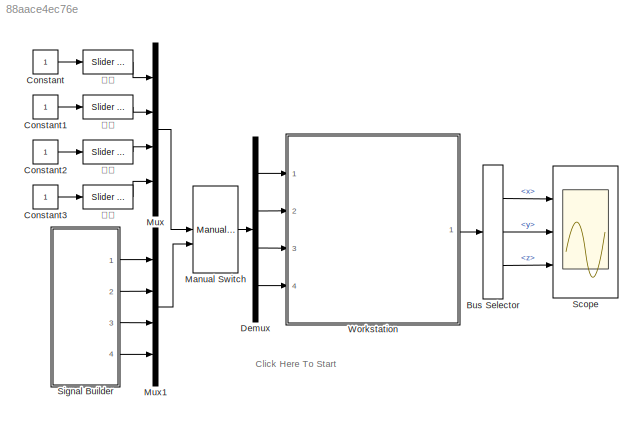
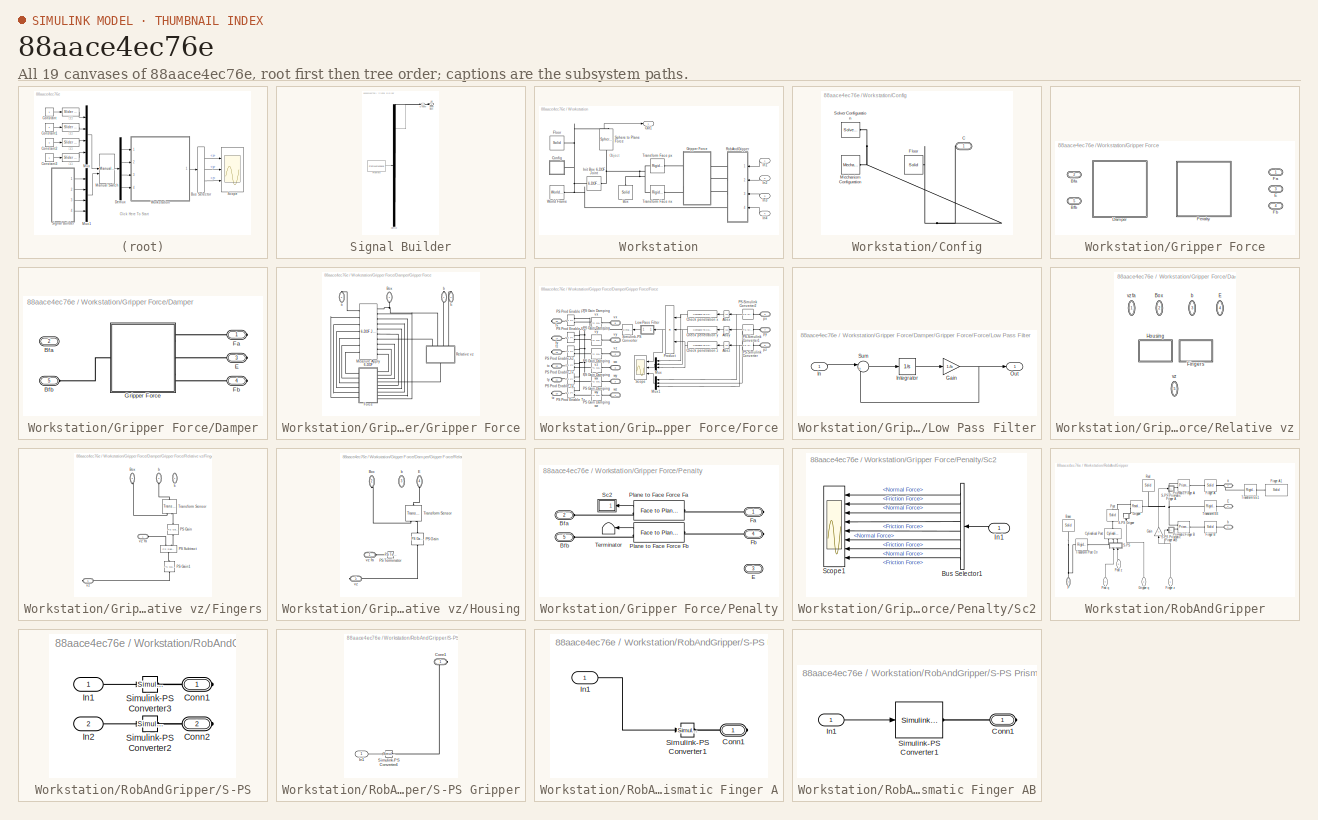
[diagram: thumbnail index - all 19 canvases of the model, root first then tree order]
MODEL slx_88aace4ec76e
KIND model
CONFIG AbsTol = auto
CONFIG EnableMultiTasking = off
CONFIG FixedStep = auto
CONFIG MaxStep = 0.001
CONFIG MinStep = auto
CONFIG RelTol = 1e-3
CONFIG SampleTimeConstraint = Unconstrained
CONFIG Solver = ode15s
CONFIG SolverName = ode15s
CONFIG StartTime = 0.0
CONFIG StopTime = 11
BLOCK [BusSelector] Bus Selector
  OutputAsBus = off
  OutputSignals = Frame Sep.x,Frame Sep.y,Frame Sep.z
  Ports = [1, 3]
BLOCK [Constant] Constant
BLOCK [Constant] Constant1
BLOCK [Constant] Constant2
BLOCK [Constant] Constant3
BLOCK [Demux] Demux
  DisplayOption = bar
  Ports = [1, 4]
BLOCK [ManualSwitch] Manual Switch
BLOCK [Mux] Mux
  DisplayOption = bar
  Ports = [4, 1]
BLOCK [Mux] Mux1
  DisplayOption = bar
  Ports = [4, 1]
BLOCK [Scope] Scope
  Floating = off
  NumInputPorts = 3
  Ports = [3]
  ScopeSpecificationString = Simulink.scopes.TimeScopeBlockCfg('CurrentConfiguration', extmgr.ConfigurationSet(extmgr.Configuration('Core','General UI',true,'FigureColor',[1 1 1]),extmgr.Configuration('Core','Source UI',true),extmgr.Configuration('Sources','WiredSimulink',true,'DataLoggingVariableName','ScopeData1'),extmgr.Configuration('Visuals','Time Domain',true,'SerializedDisplays',{struct('MinYLimReal','-0.4452','MaxYLim...<+3801ch>
BLOCK [SubSystem] Signal Builder
  ClipboardFcn = sigbuilder_block('clipboard');
  CloseFcn = sigbuilder_block('close');
  ContinueFcn = sigbuilder_block('continue');
  CopyFcn = sigbuilder_block('copy');
  DeleteFcn = sigbuilder_block('delete');
  LoadFcn = sigbuilder_block('load');
  MaskHideContents = on
  ModelCloseFcn = sigbuilder_block('modelClose');
  NameChangeFcn = sigbuilder_block('namechange');
  OpenFcn = sigbuilder_block('open',[439.2 42.6 550.8 400.2 ]);
  PauseFcn = sigbuilder_block('pause');
  Ports = [0, 4]
  PreSaveFcn = sigbuilder_block('preSave');
  RequestExecContextInheritance = off
  StartFcn = sigbuilder_block('start');
  StopFcn = sigbuilder_block('stop');
  Tag = STV Subsys
BLOCK [Demux] Signal Builder/Demux
  Ports = [1, 4]
  Tag = STV Demux
BLOCK [Outport] Signal Builder/Down
  IconDisplay = Port number
  Port = 2
  Tag = STV Outport
BLOCK [FromWorkspace] Signal Builder/FromWs
  SampleTime = 0
  Tag = STV FromWs
  VariableName = tuvar
  ZeroCross = on
BLOCK [Outport] Signal Builder/Gripper
  IconDisplay = Port number
  Tag = STV Outport
BLOCK [Outport] Signal Builder/Right
  IconDisplay = Port number
  Port = 4
  Tag = STV Outport
BLOCK [Outport] Signal Builder/Up
  IconDisplay = Port number
  Port = 3
  Tag = STV Outport
BLOCK [SubSystem] Workstation
  Ports = [4, 1]
  RequestExecContextInheritance = off
BLOCK [Reference] Workstation/Box  REF=sm_lib/Body Elements/Solid
  Ports = [0, 0, 0, 0, 0, 0, 1]
  SourceBlock = sm_lib/Body Elements/Solid
  SourceProductBaseCode = MS
  SourceType = Solid
BLOCK [SubSystem] Workstation/Config
  Ports = [0, 0, 0, 0, 0, 0, 1]
  RequestExecContextInheritance = off
BLOCK [PMIOPort] Workstation/Config/C
  Side = Right
BLOCK [Reference] Workstation/Config/Floor  REF=sm_lib/Body Elements/Solid
  Commented = on
  Ports = [0, 0, 0, 0, 0, 1, 1]
  SourceBlock = sm_lib/Body Elements/Solid
  SourceProductBaseCode = MS
  SourceType = Solid
BLOCK [Reference] Workstation/Config/Mechanism Configuration  REF=sm_lib/Utilities/Mechanism
Configuration
  Ports = [0, 0, 0, 0, 0, 0, 1]
  SourceBlock = sm_lib/Utilities/Mechanism\nConfiguration
  SourceProductBaseCode = MS
  SourceType = Mechanism\nConfiguration
BLOCK [Reference] Workstation/Config/Solver Configuration  REF=nesl_utility/Solver
Configuration
  Ports = [0, 0, 0, 0, 0, 0, 1]
  SourceBlock = nesl_utility/Solver\nConfiguration
  SourceProductBaseCode = SS
  SourceType = Solver\nConfiguration
BLOCK [Reference] Workstation/Floor  REF=sm_lib/Body Elements/Solid
  Ports = [0, 0, 0, 0, 0, 0, 1]
  SourceBlock = sm_lib/Body Elements/Solid
  SourceProductBaseCode = MS
  SourceProductName = Simscape Multibody
  SourceType = Solid
BLOCK [SubSystem] Workstation/Gripper Force
  AttributesFormatString = %<ActiveVariant>
  OverrideUsingVariant = Damper
  Ports = [0, 0, 0, 0, 0, 2, 3]
  RequestExecContextInheritance = off
  Variant = on
BLOCK [PMIOPort] Workstation/Gripper Force/Bfa
  Port = 2
  Side = Left
BLOCK [PMIOPort] Workstation/Gripper Force/Bfb
  Port = 5
  Side = Left
BLOCK [SubSystem] Workstation/Gripper Force/Damper
  Ports = [0, 0, 0, 0, 0, 2, 3]
  RequestExecContextInheritance = off
  VariantControl = Damper
BLOCK [PMIOPort] Workstation/Gripper Force/Damper/Bfa
  Port = 2
  Side = Left
BLOCK [PMIOPort] Workstation/Gripper Force/Damper/Bfb
  Port = 5
  Side = Left
BLOCK [PMIOPort] Workstation/Gripper Force/Damper/E
  Port = 3
  Side = Right
BLOCK [PMIOPort] Workstation/Gripper Force/Damper/Fa
  Side = Right
BLOCK [PMIOPort] Workstation/Gripper Force/Damper/Fb
  Port = 4
  Side = Right
BLOCK [SubSystem] Workstation/Gripper Force/Damper/Gripper Force
  Ports = [0, 0, 0, 0, 0, 1, 3]
  RequestExecContextInheritance = off
  Tag = PublishSubsystem
BLOCK [PMIOPort] Workstation/Gripper Force/Damper/Gripper Force/Box
  Port = 4
  Side = Left
BLOCK [PMIOPort] Workstation/Gripper Force/Damper/Gripper Force/E
  Port = 2
  Side = Right
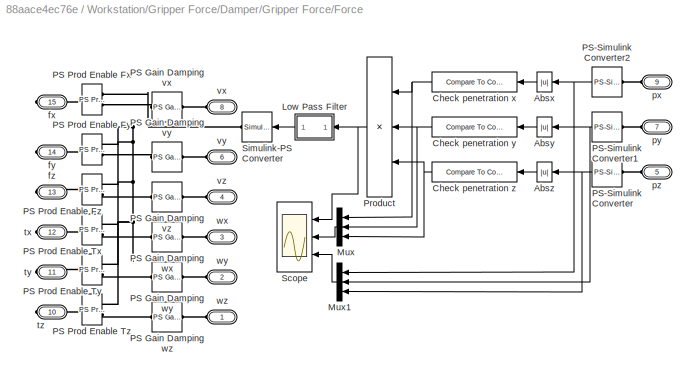
BLOCK [SubSystem] Workstation/Gripper Force/Damper/Gripper Force/Force
  Ports = [0, 0, 0, 0, 0, 9, 6]
  RequestExecContextInheritance = off
BLOCK [Abs] Workstation/Gripper Force/Damper/Gripper Force/Force/Absx
  SaturateOnIntegerOverflow = off
  ZeroCross = off
BLOCK [Abs] Workstation/Gripper Force/Damper/Gripper Force/Force/Absy
  SaturateOnIntegerOverflow = off
  ZeroCross = off
BLOCK [Abs] Workstation/Gripper Force/Damper/Gripper Force/Force/Absz
  SaturateOnIntegerOverflow = off
  ZeroCross = off
BLOCK [Reference] Workstation/Gripper Force/Damper/Gripper Force/Force/Check penetration x  REF=simulink/Logic and Bit
Operations/Compare
To Constant
  Ports = [1, 1]
  SourceBlock = simulink/Logic and Bit\nOperations/Compare\nTo Constant
  SourceProductBaseCode = SL
  SourceProductName = Simulink
  SourceType = Compare To Constant
BLOCK [Reference] Workstation/Gripper Force/Damper/Gripper Force/Force/Check penetration y  REF=simulink/Logic and Bit
Operations/Compare
To Constant
  Ports = [1, 1]
  SourceBlock = simulink/Logic and Bit\nOperations/Compare\nTo Constant
  SourceProductBaseCode = SL
  SourceProductName = Simulink
  SourceType = Compare To Constant
BLOCK [Reference] Workstation/Gripper Force/Damper/Gripper Force/Force/Check penetration z  REF=simulink/Logic and Bit
Operations/Compare
To Constant
  Ports = [1, 1]
  SourceBlock = simulink/Logic and Bit\nOperations/Compare\nTo Constant
  SourceProductBaseCode = SL
  SourceProductName = Simulink
  SourceType = Compare To Constant
BLOCK [SubSystem] Workstation/Gripper Force/Damper/Gripper Force/Force/Low Pass Filter
  Ports = [1, 1]
  RequestExecContextInheritance = off
BLOCK [Gain] Workstation/Gripper Force/Damper/Gripper Force/Force/Low Pass Filter/Gain
  Gain = 1./b
  OutDataTypeStr = Inherit: Inherit via internal rule
  ParamDataTypeStr = Inherit: Inherit via internal rule
  SaturateOnIntegerOverflow = off
BLOCK [Inport] Workstation/Gripper Force/Damper/Gripper Force/Force/Low Pass Filter/In
  IconDisplay = Port number
BLOCK [Integrator] Workstation/Gripper Force/Damper/Gripper Force/Force/Low Pass Filter/Integrator
  InitialCondition = x_initial.*b
  Ports = [1, 1]
BLOCK [Outport] Workstation/Gripper Force/Damper/Gripper Force/Force/Low Pass Filter/Out
  IconDisplay = Port number
BLOCK [Sum] Workstation/Gripper Force/Damper/Gripper Force/Force/Low Pass Filter/Sum
  IconShape = round
  Inputs = |+-
  Ports = [2, 1]
BLOCK [Mux] Workstation/Gripper Force/Damper/Gripper Force/Force/Mux
  DisplayOption = bar
  Inputs = 3
  Ports = [3, 1]
BLOCK [Mux] Workstation/Gripper Force/Damper/Gripper Force/Force/Mux1
  DisplayOption = bar
  Inputs = 3
  Ports = [3, 1]
BLOCK [Reference] Workstation/Gripper Force/Damper/Gripper Force/Force/PS Gain Damping vx  REF=fl_lib/Physical Signals/Functions/PS Gain
  Ports = [0, 0, 0, 0, 0, 1, 1]
  SourceBlock = fl_lib/Physical Signals/Functions/PS Gain
  SourceProductBaseCode = SS
  SourceProductName = Simscape
  SourceType = PS Gain
BLOCK [Reference] Workstation/Gripper Force/Damper/Gripper Force/Force/PS Gain Damping vy  REF=fl_lib/Physical Signals/Functions/PS Gain
  Ports = [0, 0, 0, 0, 0, 1, 1]
  SourceBlock = fl_lib/Physical Signals/Functions/PS Gain
  SourceProductBaseCode = SS
  SourceProductName = Simscape
  SourceType = PS Gain
BLOCK [Reference] Workstation/Gripper Force/Damper/Gripper Force/Force/PS Gain Damping vz  REF=fl_lib/Physical Signals/Functions/PS Gain
  Ports = [0, 0, 0, 0, 0, 1, 1]
  SourceBlock = fl_lib/Physical Signals/Functions/PS Gain
  SourceProductBaseCode = SS
  SourceProductName = Simscape
  SourceType = PS Gain
BLOCK [Reference] Workstation/Gripper Force/Damper/Gripper Force/Force/PS Gain Damping wx  REF=fl_lib/Physical Signals/Functions/PS Gain
  Ports = [0, 0, 0, 0, 0, 1, 1]
  SourceBlock = fl_lib/Physical Signals/Functions/PS Gain
  SourceProductBaseCode = SS
  SourceProductName = Simscape
  SourceType = PS Gain
BLOCK [Reference] Workstation/Gripper Force/Damper/Gripper Force/Force/PS Gain Damping wy  REF=fl_lib/Physical Signals/Functions/PS Gain
  Ports = [0, 0, 0, 0, 0, 1, 1]
  SourceBlock = fl_lib/Physical Signals/Functions/PS Gain
  SourceProductBaseCode = SS
  SourceProductName = Simscape
  SourceType = PS Gain
BLOCK [Reference] Workstation/Gripper Force/Damper/Gripper Force/Force/PS Gain Damping wz  REF=fl_lib/Physical Signals/Functions/PS Gain
  Ports = [0, 0, 0, 0, 0, 1, 1]
  SourceBlock = fl_lib/Physical Signals/Functions/PS Gain
  SourceProductBaseCode = SS
  SourceProductName = Simscape
  SourceType = PS Gain
BLOCK [Reference] Workstation/Gripper Force/Damper/Gripper Force/Force/PS Prod Enable Fx  REF=fl_lib/Physical Signals/Functions/PS Product
  Ports = [0, 0, 0, 0, 0, 2, 1]
  SourceBlock = fl_lib/Physical Signals/Functions/PS Product
  SourceProductBaseCode = SS
  SourceProductName = Simscape
  SourceType = PS Product
BLOCK [Reference] Workstation/Gripper Force/Damper/Gripper Force/Force/PS Prod Enable Fy  REF=fl_lib/Physical Signals/Functions/PS Product
  Ports = [0, 0, 0, 0, 0, 2, 1]
  SourceBlock = fl_lib/Physical Signals/Functions/PS Product
  SourceProductBaseCode = SS
  SourceProductName = Simscape
  SourceType = PS Product
BLOCK [Reference] Workstation/Gripper Force/Damper/Gripper Force/Force/PS Prod Enable Fz  REF=fl_lib/Physical Signals/Functions/PS Product
  Ports = [0, 0, 0, 0, 0, 2, 1]
  SourceBlock = fl_lib/Physical Signals/Functions/PS Product
  SourceProductBaseCode = SS
  SourceProductName = Simscape
  SourceType = PS Product
BLOCK [Reference] Workstation/Gripper Force/Damper/Gripper Force/Force/PS Prod Enable Tx  REF=fl_lib/Physical Signals/Functions/PS Product
  Ports = [0, 0, 0, 0, 0, 2, 1]
  SourceBlock = fl_lib/Physical Signals/Functions/PS Product
  SourceProductBaseCode = SS
  SourceProductName = Simscape
  SourceType = PS Product
BLOCK [Reference] Workstation/Gripper Force/Damper/Gripper Force/Force/PS Prod Enable Ty  REF=fl_lib/Physical Signals/Functions/PS Product
  Ports = [0, 0, 0, 0, 0, 2, 1]
  SourceBlock = fl_lib/Physical Signals/Functions/PS Product
  SourceProductBaseCode = SS
  SourceProductName = Simscape
  SourceType = PS Product
BLOCK [Reference] Workstation/Gripper Force/Damper/Gripper Force/Force/PS Prod Enable Tz  REF=fl_lib/Physical Signals/Functions/PS Product
  Ports = [0, 0, 0, 0, 0, 2, 1]
  SourceBlock = fl_lib/Physical Signals/Functions/PS Product
  SourceProductBaseCode = SS
  SourceProductName = Simscape
  SourceType = PS Product
BLOCK [Reference] Workstation/Gripper Force/Damper/Gripper Force/Force/PS-Simulink Converter  REF=nesl_utility/PS-Simulink
Converter
  Ports = [0, 1, 0, 0, 0, 1]
  SourceBlock = nesl_utility/PS-Simulink\nConverter
  SourceProductBaseCode = SS
  SourceProductName = Simscape
  SourceType = PS-Simulink\nConverter
BLOCK [Reference] Workstation/Gripper Force/Damper/Gripper Force/Force/PS-Simulink Converter1  REF=nesl_utility/PS-Simulink
Converter
  Ports = [0, 1, 0, 0, 0, 1]
  SourceBlock = nesl_utility/PS-Simulink\nConverter
  SourceProductBaseCode = SS
  SourceProductName = Simscape
  SourceType = PS-Simulink\nConverter
BLOCK [Reference] Workstation/Gripper Force/Damper/Gripper Force/Force/PS-Simulink Converter2  REF=nesl_utility/PS-Simulink
Converter
  Ports = [0, 1, 0, 0, 0, 1]
  SourceBlock = nesl_utility/PS-Simulink\nConverter
  SourceProductBaseCode = SS
  SourceProductName = Simscape
  SourceType = PS-Simulink\nConverter
BLOCK [Product] Workstation/Gripper Force/Damper/Gripper Force/Force/Product
  InputSameDT = off
  Inputs = 3
  OutDataTypeStr = double
  Ports = [3, 1]
  RndMeth = Floor
  SaturateOnIntegerOverflow = off
BLOCK [Scope] Workstation/Gripper Force/Damper/Gripper Force/Force/Scope
  Floating = off
  NumInputPorts = 3
  Ports = [3]
  ScopeSpecificationString = Simulink.scopes.TimeScopeBlockCfg('CurrentConfiguration', extmgr.ConfigurationSet(extmgr.Configuration('Core','General UI',true),extmgr.Configuration('Core','Source UI',true),extmgr.Configuration('Sources','WiredSimulink',true,'DataLoggingVariableName','ScopeData1'),extmgr.Configuration('Visuals','Time Domain',true,'SerializedDisplays',{struct('MinYLimReal','-0.125','MaxYLimReal','1.125','YLabelRe...<+2855ch>
BLOCK [Reference] Workstation/Gripper Force/Damper/Gripper Force/Force/Simulink-PS Converter  REF=nesl_utility/Simulink-PS
Converter
  Ports = [1, 0, 0, 0, 0, 0, 1]
  SourceBlock = nesl_utility/Simulink-PS\nConverter
  SourceProductBaseCode = SS
  SourceProductName = Simscape
  SourceType = Simulink-PS\nConverter
BLOCK [PMIOPort] Workstation/Gripper Force/Damper/Gripper Force/Force/fx
  Port = 15
  Side = Right
BLOCK [PMIOPort] Workstation/Gripper Force/Damper/Gripper Force/Force/fy
  Port = 14
  Side = Right
BLOCK [PMIOPort] Workstation/Gripper Force/Damper/Gripper Force/Force/fz
  Port = 13
  Side = Right
BLOCK [PMIOPort] Workstation/Gripper Force/Damper/Gripper Force/Force/px
  Port = 9
  Side = Left
BLOCK [PMIOPort] Workstation/Gripper Force/Damper/Gripper Force/Force/py
  Port = 7
  Side = Left
BLOCK [PMIOPort] Workstation/Gripper Force/Damper/Gripper Force/Force/pz
  Port = 5
  Side = Left
BLOCK [PMIOPort] Workstation/Gripper Force/Damper/Gripper Force/Force/tx
  Port = 12
  Side = Right
BLOCK [PMIOPort] Workstation/Gripper Force/Damper/Gripper Force/Force/ty
  Port = 11
  Side = Right
BLOCK [PMIOPort] Workstation/Gripper Force/Damper/Gripper Force/Force/tz
  Port = 10
  Side = Right
BLOCK [PMIOPort] Workstation/Gripper Force/Damper/Gripper Force/Force/vx
  Port = 8
  Side = Left
BLOCK [PMIOPort] Workstation/Gripper Force/Damper/Gripper Force/Force/vy
  Port = 6
  Side = Left
BLOCK [PMIOPort] Workstation/Gripper Force/Damper/Gripper Force/Force/vz
  Port = 4
  Side = Left
BLOCK [PMIOPort] Workstation/Gripper Force/Damper/Gripper Force/Force/wx
  Port = 3
  Side = Left
BLOCK [PMIOPort] Workstation/Gripper Force/Damper/Gripper Force/Force/wy
  Port = 2
  Side = Left
BLOCK [PMIOPort] Workstation/Gripper Force/Damper/Gripper Force/Force/wz
  Side = Left
BLOCK [Reference] Workstation/Gripper Force/Damper/Gripper Force/Measure Apply 6-DOF  REF=sm_lib/Joints/6-DOF Joint
  Ports = [0, 0, 0, 0, 0, 7, 10]
  SourceBlock = sm_lib/Joints/6-DOF Joint
  SourceProductBaseCode = MS
  SourceProductName = Simscape Multibody
  SourceType = 6-DOF Joint
BLOCK [SubSystem] Workstation/Gripper Force/Damper/Gripper Force/Relative vz
  AttributesFormatString = %<ActiveVariant>
  OverrideUsingVariant = Fingers
  Ports = [0, 0, 0, 0, 0, 4, 1]
  RequestExecContextInheritance = off
  Variant = on
BLOCK [PMIOPort] Workstation/Gripper Force/Damper/Gripper Force/Relative vz/Box
  Port = 2
  Side = Left
BLOCK [PMIOPort] Workstation/Gripper Force/Damper/Gripper Force/Relative vz/E
  Port = 4
  Side = Left
BLOCK [SubSystem] Workstation/Gripper Force/Damper/Gripper Force/Relative vz/Fingers
  Ports = [0, 0, 0, 0, 0, 4, 1]
  RequestExecContextInheritance = off
  VariantControl = Fingers
BLOCK [PMIOPort] Workstation/Gripper Force/Damper/Gripper Force/Relative vz/Fingers/Box
  Port = 2
  Side = Left
BLOCK [PMIOPort] Workstation/Gripper Force/Damper/Gripper Force/Relative vz/Fingers/E
  Port = 4
  Side = Left
BLOCK [Reference] Workstation/Gripper Force/Damper/Gripper Force/Relative vz/Fingers/PS Gain  REF=fl_lib/Physical Signals/Functions/PS Gain
  Ports = [0, 0, 0, 0, 0, 1, 1]
  SourceBlock = fl_lib/Physical Signals/Functions/PS Gain
  SourceProductBaseCode = SS
  SourceProductName = Simscape
  SourceType = PS Gain
BLOCK [Reference] Workstation/Gripper Force/Damper/Gripper Force/Relative vz/Fingers/PS Gain1  REF=fl_lib/Physical Signals/Functions/PS Gain
  Ports = [0, 0, 0, 0, 0, 1, 1]
  SourceBlock = fl_lib/Physical Signals/Functions/PS Gain
  SourceProductBaseCode = SS
  SourceProductName = Simscape
  SourceType = PS Gain
BLOCK [Reference] Workstation/Gripper Force/Damper/Gripper Force/Relative vz/Fingers/PS Subtract  REF=fl_lib/Physical Signals/Functions/PS Subtract
  Ports = [0, 0, 0, 0, 0, 2, 1]
  SourceBlock = fl_lib/Physical Signals/Functions/PS Subtract
  SourceProductBaseCode = SS
  SourceProductName = Simscape
  SourceType = PS Subtract
BLOCK [Reference] Workstation/Gripper Force/Damper/Gripper Force/Relative vz/Fingers/Transform Sensor  REF=sm_lib/Frames and
Transforms/Transform
Sensor
  Ports = [0, 0, 0, 0, 0, 1, 2]
  SourceBlock = sm_lib/Frames and\nTransforms/Transform\nSensor
  SourceProductBaseCode = MS
  SourceProductName = Simscape Multibody
  SourceType = Transform\nSensor
BLOCK [PMIOPort] Workstation/Gripper Force/Damper/Gripper Force/Relative vz/Fingers/b
  Port = 3
  Side = Left
BLOCK [PMIOPort] Workstation/Gripper Force/Damper/Gripper Force/Relative vz/Fingers/vz
  Port = 5
  Side = Right
BLOCK [PMIOPort] Workstation/Gripper Force/Damper/Gripper Force/Relative vz/Fingers/vz fa
  Side = Left
BLOCK [SubSystem] Workstation/Gripper Force/Damper/Gripper Force/Relative vz/Housing
  Ports = [0, 0, 0, 0, 0, 4, 1]
  RequestExecContextInheritance = off
  VariantControl = Housing
BLOCK [PMIOPort] Workstation/Gripper Force/Damper/Gripper Force/Relative vz/Housing/Box
  Port = 2
  Side = Left
BLOCK [PMIOPort] Workstation/Gripper Force/Damper/Gripper Force/Relative vz/Housing/E
  Port = 4
  Side = Left
BLOCK [Reference] Workstation/Gripper Force/Damper/Gripper Force/Relative vz/Housing/PS Gain  REF=fl_lib/Physical Signals/Functions/PS Gain
  Ports = [0, 0, 0, 0, 0, 1, 1]
  SourceBlock = fl_lib/Physical Signals/Functions/PS Gain
  SourceProductBaseCode = SS
  SourceProductName = Simscape
  SourceType = PS Gain
BLOCK [Reference] Workstation/Gripper Force/Damper/Gripper Force/Relative vz/Housing/PS Terminator  REF=fl_lib/Physical Signals/Sinks/PS Terminator
  Ports = [0, 0, 0, 0, 0, 1]
  SourceBlock = fl_lib/Physical Signals/Sinks/PS Terminator
  SourceProductBaseCode = SS
  SourceProductName = Simscape
  SourceType = PS Terminator
BLOCK [Reference] Workstation/Gripper Force/Damper/Gripper Force/Relative vz/Housing/Transform Sensor  REF=sm_lib/Frames and
Transforms/Transform
Sensor
  Ports = [0, 0, 0, 0, 0, 1, 2]
  SourceBlock = sm_lib/Frames and\nTransforms/Transform\nSensor
  SourceProductBaseCode = MS
  SourceProductName = Simscape Multibody
  SourceType = Transform\nSensor
BLOCK [PMIOPort] Workstation/Gripper Force/Damper/Gripper Force/Relative vz/Housing/b
  Port = 3
  Side = Left
BLOCK [PMIOPort] Workstation/Gripper Force/Damper/Gripper Force/Relative vz/Housing/vz
  Port = 5
  Side = Right
BLOCK [PMIOPort] Workstation/Gripper Force/Damper/Gripper Force/Relative vz/Housing/vz fa
  Side = Left
BLOCK [PMIOPort] Workstation/Gripper Force/Damper/Gripper Force/Relative vz/b
  Port = 3
  Side = Left
BLOCK [PMIOPort] Workstation/Gripper Force/Damper/Gripper Force/Relative vz/vz
  Port = 5
  Side = Right
BLOCK [PMIOPort] Workstation/Gripper Force/Damper/Gripper Force/Relative vz/vz fa
  Side = Left
BLOCK [PMIOPort] Workstation/Gripper Force/Damper/Gripper Force/a
  Port = 3
  Side = Right
BLOCK [PMIOPort] Workstation/Gripper Force/Damper/Gripper Force/b
  Side = Right
BLOCK [PMIOPort] Workstation/Gripper Force/E
  Port = 3
  Side = Right
BLOCK [PMIOPort] Workstation/Gripper Force/Fa
  Side = Right
BLOCK [PMIOPort] Workstation/Gripper Force/Fb
  Port = 4
  Side = Right
BLOCK [SubSystem] Workstation/Gripper Force/Penalty
  Ports = [0, 0, 0, 0, 0, 2, 3]
  RequestExecContextInheritance = off
  VariantControl = Penalty
BLOCK [PMIOPort] Workstation/Gripper Force/Penalty/Bfa
  Port = 2
  Side = Left
BLOCK [PMIOPort] Workstation/Gripper Force/Penalty/Bfb
  Port = 5
  Side = Left
BLOCK [PMIOPort] Workstation/Gripper Force/Penalty/E
  Port = 3
  Side = Right
BLOCK [PMIOPort] Workstation/Gripper Force/Penalty/Fa
  Side = Right
BLOCK [PMIOPort] Workstation/Gripper Force/Penalty/Fb
  Port = 4
  Side = Right
BLOCK [Reference] Workstation/Gripper Force/Penalty/Plane to Face Force Fa  REF=Contact_Forces_Lib/3D/Composite
Forces/Face to Plane Force
  Ports = [0, 1, 0, 0, 0, 1, 1]
  SourceBlock = Contact_Forces_Lib/3D/Composite\nForces/Face to Plane Force
  SourceProductName = Simscape Multibody Contact Forces Library
  SourceType = Face to Plane Force
BLOCK [Reference] Workstation/Gripper Force/Penalty/Plane to Face Force Fb  REF=Contact_Forces_Lib/3D/Composite
Forces/Face to Plane Force
  Ports = [0, 1, 0, 0, 0, 1, 1]
  SourceBlock = Contact_Forces_Lib/3D/Composite\nForces/Face to Plane Force
  SourceProductName = Simscape Multibody Contact Forces Library
  SourceType = Face to Plane Force
BLOCK [SubSystem] Workstation/Gripper Force/Penalty/Sc2
  Ports = [1]
  RequestExecContextInheritance = off
BLOCK [BusSelector] Workstation/Gripper Force/Penalty/Sc2/Bus Selector1
  OutputAsBus = off
  OutputSignals = fz1.Normal Force,fz1.Friction Force,fz2.Normal Force,fz2.Friction Force,fz3.Normal Force,fz3.Friction Force,fz4.Normal Force,fz4.Friction Force
  Ports = [1, 8]
BLOCK [Inport] Workstation/Gripper Force/Penalty/Sc2/In1
  IconDisplay = Port number
BLOCK [Scope] Workstation/Gripper Force/Penalty/Sc2/Scope1
  Floating = off
  NumInputPorts = 8
  Ports = [8]
  ScopeSpecificationString = Simulink.scopes.TimeScopeBlockCfg('CurrentConfiguration', extmgr.ConfigurationSet(extmgr.Configuration('Core','General UI',true),extmgr.Configuration('Core','Source UI',true),extmgr.Configuration('Sources','WiredSimulink',true,'DataLoggingVariableName','ScopeData2'),extmgr.Configuration('Visuals','Time Domain',true,'SerializedDisplays',{struct('MinYLimReal','-312.6734','MaxYLimReal','2814.06064','...<+6529ch>
BLOCK [Terminator] Workstation/Gripper Force/Penalty/Terminator
BLOCK [Inport] Workstation/In1
  IconDisplay = Port number
BLOCK [Inport] Workstation/In2
  IconDisplay = Port number
  Port = 2
BLOCK [Inport] Workstation/In3
  IconDisplay = Port number
  Port = 3
BLOCK [Inport] Workstation/In4
  IconDisplay = Port number
  Port = 4
BLOCK [Reference] Workstation/Init Box 6-DOF Joint  REF=sm_lib/Joints/6-DOF Joint
  Ports = [0, 0, 0, 0, 0, 1, 1]
  SourceBlock = sm_lib/Joints/6-DOF Joint
  SourceProductBaseCode = MS
  SourceType = 6-DOF Joint
BLOCK [Outport] Workstation/Out1
  IconDisplay = Port number
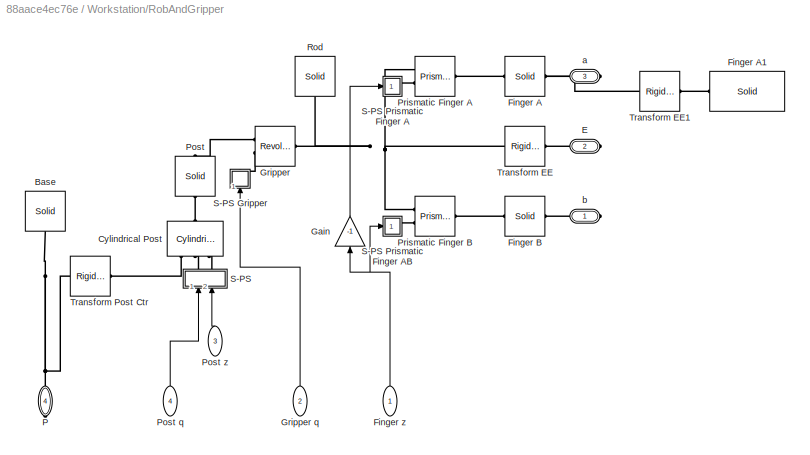
BLOCK [SubSystem] Workstation/RobAndGripper
  Ports = [4, 0, 0, 0, 0, 0, 4]
  RequestExecContextInheritance = off
BLOCK [Reference] Workstation/RobAndGripper/Base  REF=sm_lib/Body Elements/Solid
  Ports = [0, 0, 0, 0, 0, 1]
  SourceBlock = sm_lib/Body Elements/Solid
  SourceProductBaseCode = MS
  SourceType = Solid
BLOCK [Reference] Workstation/RobAndGripper/Cylindrical Post  REF=sm_lib/Joints/Cylindrical
Joint
  Ports = [0, 0, 0, 0, 0, 3, 1]
  SourceBlock = sm_lib/Joints/Cylindrical\nJoint
  SourceProductBaseCode = MS
  SourceType = Cylindrical\nJoint
BLOCK [PMIOPort] Workstation/RobAndGripper/E
  Port = 2
  Side = Right
BLOCK [Reference] Workstation/RobAndGripper/Finger A  REF=sm_lib/Body Elements/Solid
  Ports = [0, 0, 0, 0, 0, 1, 1]
  SourceBlock = sm_lib/Body Elements/Solid
  SourceProductBaseCode = MS
  SourceType = Solid
BLOCK [Reference] Workstation/RobAndGripper/Finger A1  REF=sm_lib/Body Elements/Solid
  Ports = [0, 0, 0, 0, 0, 1, 1]
  SourceBlock = sm_lib/Body Elements/Solid
  SourceProductBaseCode = MS
  SourceType = Solid
BLOCK [Reference] Workstation/RobAndGripper/Finger B  REF=sm_lib/Body Elements/Solid
  Ports = [0, 0, 0, 0, 0, 1, 1]
  SourceBlock = sm_lib/Body Elements/Solid
  SourceProductBaseCode = MS
  SourceType = Solid
BLOCK [Inport] Workstation/RobAndGripper/Finger z
  IconDisplay = Port number
BLOCK [Gain] Workstation/RobAndGripper/Gain
  Gain = -1
  OutDataTypeStr = Inherit: Inherit via internal rule
  ParamDataTypeStr = Inherit: Inherit via internal rule
  SaturateOnIntegerOverflow = off
BLOCK [Reference] Workstation/RobAndGripper/Gripper  REF=sm_lib/Joints/Revolute Joint
  Ports = [0, 0, 0, 0, 0, 2, 1]
  SourceBlock = sm_lib/Joints/Revolute Joint
  SourceProductBaseCode = MS
  SourceType = Revolute Joint
BLOCK [Inport] Workstation/RobAndGripper/Gripper q
  IconDisplay = Port number
  Port = 2
BLOCK [PMIOPort] Workstation/RobAndGripper/P
  Port = 4
  Side = Right
BLOCK [Reference] Workstation/RobAndGripper/Post  REF=sm_lib/Body Elements/Solid
  Ports = [0, 0, 0, 0, 0, 1, 1]
  SourceBlock = sm_lib/Body Elements/Solid
  SourceProductBaseCode = MS
  SourceType = Solid
BLOCK [Inport] Workstation/RobAndGripper/Post  q
  IconDisplay = Port number
  Port = 4
BLOCK [Inport] Workstation/RobAndGripper/Post z
  IconDisplay = Port number
  Port = 3
BLOCK [Reference] Workstation/RobAndGripper/Prismatic Finger A  REF=sm_lib/Joints/Prismatic
Joint
  Ports = [0, 0, 0, 0, 0, 2, 1]
  SourceBlock = sm_lib/Joints/Prismatic\nJoint
  SourceProductBaseCode = MS
  SourceType = Prismatic\nJoint
BLOCK [Reference] Workstation/RobAndGripper/Prismatic Finger B  REF=sm_lib/Joints/Prismatic
Joint
  Ports = [0, 0, 0, 0, 0, 2, 1]
  SourceBlock = sm_lib/Joints/Prismatic\nJoint
  SourceProductBaseCode = MS
  SourceType = Prismatic\nJoint
BLOCK [Reference] Workstation/RobAndGripper/Rod  REF=sm_lib/Body Elements/Solid
  Ports = [0, 0, 0, 0, 0, 0, 1]
  SourceBlock = sm_lib/Body Elements/Solid
  SourceProductBaseCode = MS
  SourceType = Solid
BLOCK [SubSystem] Workstation/RobAndGripper/S-PS
  Ports = [2, 0, 0, 0, 0, 0, 2]
  RequestExecContextInheritance = off
BLOCK [SubSystem] Workstation/RobAndGripper/S-PS Gripper
  Ports = [1, 0, 0, 0, 0, 0, 1]
  RequestExecContextInheritance = off
BLOCK [PMIOPort] Workstation/RobAndGripper/S-PS Gripper/Conn1
  Side = Right
BLOCK [Inport] Workstation/RobAndGripper/S-PS Gripper/In1
  IconDisplay = Port number
BLOCK [Reference] Workstation/RobAndGripper/S-PS Gripper/Simulink-PS Converter4  REF=nesl_utility/Simulink-PS
Converter
  Ports = [1, 0, 0, 0, 0, 0, 1]
  SourceBlock = nesl_utility/Simulink-PS\nConverter
  SourceProductBaseCode = SS
  SourceType = Simulink-PS\nConverter
BLOCK [SubSystem] Workstation/RobAndGripper/S-PS Prismatic Finger A
  Ports = [1, 0, 0, 0, 0, 0, 1]
  RequestExecContextInheritance = off
BLOCK [PMIOPort] Workstation/RobAndGripper/S-PS Prismatic Finger A/Conn1
  Side = Right
BLOCK [Inport] Workstation/RobAndGripper/S-PS Prismatic Finger A/In1
  IconDisplay = Port number
BLOCK [Reference] Workstation/RobAndGripper/S-PS Prismatic Finger A/Simulink-PS Converter1  REF=nesl_utility/Simulink-PS
Converter
  Ports = [1, 0, 0, 0, 0, 0, 1]
  SourceBlock = nesl_utility/Simulink-PS\nConverter
  SourceProductBaseCode = SS
  SourceType = Simulink-PS\nConverter
BLOCK [SubSystem] Workstation/RobAndGripper/S-PS Prismatic Finger AB
  Ports = [1, 0, 0, 0, 0, 0, 1]
  RequestExecContextInheritance = off
BLOCK [PMIOPort] Workstation/RobAndGripper/S-PS Prismatic Finger AB/Conn1
  Side = Right
BLOCK [Inport] Workstation/RobAndGripper/S-PS Prismatic Finger AB/In1
  IconDisplay = Port number
BLOCK [Reference] Workstation/RobAndGripper/S-PS Prismatic Finger AB/Simulink-PS Converter1  REF=nesl_utility/Simulink-PS
Converter
  Ports = [1, 0, 0, 0, 0, 0, 1]
  SourceBlock = nesl_utility/Simulink-PS\nConverter
  SourceProductBaseCode = SS
  SourceType = Simulink-PS\nConverter
BLOCK [PMIOPort] Workstation/RobAndGripper/S-PS/Conn1
  Side = Right
BLOCK [PMIOPort] Workstation/RobAndGripper/S-PS/Conn2
  Port = 2
  Side = Right
BLOCK [Inport] Workstation/RobAndGripper/S-PS/In1
  IconDisplay = Port number
BLOCK [Inport] Workstation/RobAndGripper/S-PS/In2
  IconDisplay = Port number
  Port = 2
BLOCK [Reference] Workstation/RobAndGripper/S-PS/Simulink-PS Converter2  REF=nesl_utility/Simulink-PS
Converter
  Ports = [1, 0, 0, 0, 0, 0, 1]
  SourceBlock = nesl_utility/Simulink-PS\nConverter
  SourceProductBaseCode = SS
  SourceType = Simulink-PS\nConverter
BLOCK [Reference] Workstation/RobAndGripper/S-PS/Simulink-PS Converter3  REF=nesl_utility/Simulink-PS
Converter
  Ports = [1, 0, 0, 0, 0, 0, 1]
  SourceBlock = nesl_utility/Simulink-PS\nConverter
  SourceProductBaseCode = SS
  SourceType = Simulink-PS\nConverter
BLOCK [Reference] Workstation/RobAndGripper/Transform EE  REF=sm_lib/Frames and
Transforms/Rigid
Transform
  Ports = [0, 0, 0, 0, 0, 1, 1]
  SourceBlock = sm_lib/Frames and\nTransforms/Rigid\nTransform
  SourceProductBaseCode = MS
  SourceType = Rigid\nTransform
BLOCK [Reference] Workstation/RobAndGripper/Transform EE1  REF=sm_lib/Frames and
Transforms/Rigid
Transform
  Ports = [0, 0, 0, 0, 0, 1, 1]
  SourceBlock = sm_lib/Frames and\nTransforms/Rigid\nTransform
  SourceProductBaseCode = MS
  SourceType = Rigid\nTransform
BLOCK [Reference] Workstation/RobAndGripper/Transform Post Ctr  REF=sm_lib/Frames and
Transforms/Rigid
Transform
  Ports = [0, 0, 0, 0, 0, 1, 1]
  SourceBlock = sm_lib/Frames and\nTransforms/Rigid\nTransform
  SourceProductBaseCode = MS
  SourceType = Rigid\nTransform
BLOCK [PMIOPort] Workstation/RobAndGripper/a
  Port = 3
  Side = Right
BLOCK [PMIOPort] Workstation/RobAndGripper/b
  Side = Right
BLOCK [Reference] Workstation/Sphere to Plane Force  REF=Contact_Forces_Lib/3D/Sphere to Plane Force
  Ports = [0, 1, 0, 0, 0, 1, 1]
  SourceBlock = Contact_Forces_Lib/3D/Sphere to Plane Force
  SourceProductName = Simscape Multibody Contact Forces Library
  SourceType = Sphere to Plane Force
BLOCK [Reference] Workstation/Transform Face nx  REF=sm_lib/Frames and
Transforms/Rigid
Transform
  Ports = [0, 0, 0, 0, 0, 1, 1]
  SourceBlock = sm_lib/Frames and\nTransforms/Rigid\nTransform
  SourceProductBaseCode = MS
  SourceType = Rigid\nTransform
BLOCK [Reference] Workstation/Transform Face px  REF=sm_lib/Frames and
Transforms/Rigid
Transform
  Ports = [0, 0, 0, 0, 0, 1, 1]
  SourceBlock = sm_lib/Frames and\nTransforms/Rigid\nTransform
  SourceProductBaseCode = MS
  SourceType = Rigid\nTransform
BLOCK [Reference] Workstation/World Frame  REF=sm_lib/Frames and
Transforms/World Frame
  Ports = [0, 0, 0, 0, 0, 0, 1]
  SourceBlock = sm_lib/Frames and\nTransforms/World Frame
  SourceProductBaseCode = MS
  SourceType = World Frame
BLOCK [Reference] 上下  REF=simulink/Math
Operations/Slider
Gain
  Ports = [1, 1]
  SourceBlock = simulink/Math\nOperations/Slider\nGain
  SourceProductBaseCode = SL
  SourceProductName = Simulink
  SourceType = Slider Gain
BLOCK [Reference] 俯仰  REF=simulink/Math
Operations/Slider
Gain
  Ports = [1, 1]
  SourceBlock = simulink/Math\nOperations/Slider\nGain
  SourceProductBaseCode = SL
  SourceProductName = Simulink
  SourceType = Slider Gain
BLOCK [Reference] 左右  REF=simulink/Math
Operations/Slider
Gain
  Ports = [1, 1]
  SourceBlock = simulink/Math\nOperations/Slider\nGain
  SourceProductBaseCode = SL
  SourceProductName = Simulink
  SourceType = Slider Gain
BLOCK [Reference] 开闭  REF=simulink/Math
Operations/Slider
Gain
  Ports = [1, 1]
  SourceBlock = simulink/Math\nOperations/Slider\nGain
  SourceProductBaseCode = SL
  SourceProductName = Simulink
  SourceType = Slider Gain
ANNOTATION (root): Click Here To Start
ANNOTATION Workstation: Object
LINE Bus Selector:1 -> Scope:1
LINE Bus Selector:2 -> Scope:2
LINE Bus Selector:3 -> Scope:3
LINE Constant1:1 -> 俯仰:1
LINE Constant2:1 -> 上下:1
LINE Constant3:1 -> 左右:1
LINE Constant:1 -> 开闭:1
LINE Demux:1 -> Workstation:1
LINE Demux:2 -> Workstation:2
LINE Demux:3 -> Workstation:3
LINE Demux:4 -> Workstation:4
LINE Manual Switch:1 -> Demux:1
LINE Mux1:1 -> Manual Switch:2
LINE Mux:1 -> Manual Switch:1
LINE Signal Builder:1 -> Mux1:1
LINE Signal Builder:2 -> Mux1:2
LINE Signal Builder:3 -> Mux1:3
LINE Signal Builder:4 -> Mux1:4
LINE Workstation/Gripper Force/Damper/Gripper Force/Force/Absx:1 -> Workstation/Gripper Force/Damper/Gripper Force/Force/Check penetration x:1
LINE Workstation/Gripper Force/Damper/Gripper Force/Force/Absy:1 -> Workstation/Gripper Force/Damper/Gripper Force/Force/Check penetration y:1
LINE Workstation/Gripper Force/Damper/Gripper Force/Force/Absz:1 -> Workstation/Gripper Force/Damper/Gripper Force/Force/Check penetration z:1
NET Workstation/Gripper Force/Damper/Gripper Force/Force/Check penetration x:1 -> Workstation/Gripper Force/Damper/Gripper Force/Force/Mux:1, Workstation/Gripper Force/Damper/Gripper Force/Force/Product:1
NET Workstation/Gripper Force/Damper/Gripper Force/Force/Check penetration y:1 -> Workstation/Gripper Force/Damper/Gripper Force/Force/Mux:2, Workstation/Gripper Force/Damper/Gripper Force/Force/Product:2
NET Workstation/Gripper Force/Damper/Gripper Force/Force/Check penetration z:1 -> Workstation/Gripper Force/Damper/Gripper Force/Force/Mux:3, Workstation/Gripper Force/Damper/Gripper Force/Force/Product:3
NET Workstation/Gripper Force/Damper/Gripper Force/Force/Low Pass Filter/Gain:1 -> Workstation/Gripper Force/Damper/Gripper Force/Force/Low Pass Filter/Out:1, Workstation/Gripper Force/Damper/Gripper Force/Force/Low Pass Filter/Sum:2
LINE Workstation/Gripper Force/Damper/Gripper Force/Force/Low Pass Filter/In:1 -> Workstation/Gripper Force/Damper/Gripper Force/Force/Low Pass Filter/Sum:1
LINE Workstation/Gripper Force/Damper/Gripper Force/Force/Low Pass Filter/Integrator:1 -> Workstation/Gripper Force/Damper/Gripper Force/Force/Low Pass Filter/Gain:1
LINE Workstation/Gripper Force/Damper/Gripper Force/Force/Low Pass Filter/Sum:1 -> Workstation/Gripper Force/Damper/Gripper Force/Force/Low Pass Filter/Integrator:1
LINE Workstation/Gripper Force/Damper/Gripper Force/Force/Low Pass Filter:1 -> Workstation/Gripper Force/Damper/Gripper Force/Force/Simulink-PS Converter:1
LINE Workstation/Gripper Force/Damper/Gripper Force/Force/Mux1:1 -> Workstation/Gripper Force/Damper/Gripper Force/Force/Scope:3
LINE Workstation/Gripper Force/Damper/Gripper Force/Force/Mux:1 -> Workstation/Gripper Force/Damper/Gripper Force/Force/Scope:2
NET Workstation/Gripper Force/Damper/Gripper Force/Force/PS-Simulink Converter1:1 -> Workstation/Gripper Force/Damper/Gripper Force/Force/Absy:1, Workstation/Gripper Force/Damper/Gripper Force/Force/Mux1:2
NET Workstation/Gripper Force/Damper/Gripper Force/Force/PS-Simulink Converter2:1 -> Workstation/Gripper Force/Damper/Gripper Force/Force/Absx:1, Workstation/Gripper Force/Damper/Gripper Force/Force/Mux1:1
NET Workstation/Gripper Force/Damper/Gripper Force/Force/PS-Simulink Converter:1 -> Workstation/Gripper Force/Damper/Gripper Force/Force/Absz:1, Workstation/Gripper Force/Damper/Gripper Force/Force/Mux1:3
NET Workstation/Gripper Force/Damper/Gripper Force/Force/Product:1 -> Workstation/Gripper Force/Damper/Gripper Force/Force/Low Pass Filter:1, Workstation/Gripper Force/Damper/Gripper Force/Force/Scope:1
LINE Workstation/Gripper Force/Penalty/Plane to Face Force Fa:1 -> Workstation/Gripper Force/Penalty/Sc2:1
LINE Workstation/Gripper Force/Penalty/Plane to Face Force Fb:1 -> Workstation/Gripper Force/Penalty/Terminator:1
LINE Workstation/Gripper Force/Penalty/Sc2/Bus Selector1:1 -> Workstation/Gripper Force/Penalty/Sc2/Scope1:1
LINE Workstation/Gripper Force/Penalty/Sc2/Bus Selector1:2 -> Workstation/Gripper Force/Penalty/Sc2/Scope1:2
LINE Workstation/Gripper Force/Penalty/Sc2/Bus Selector1:3 -> Workstation/Gripper Force/Penalty/Sc2/Scope1:3
LINE Workstation/Gripper Force/Penalty/Sc2/Bus Selector1:4 -> Workstation/Gripper Force/Penalty/Sc2/Scope1:4
LINE Workstation/Gripper Force/Penalty/Sc2/Bus Selector1:5 -> Workstation/Gripper Force/Penalty/Sc2/Scope1:5
LINE Workstation/Gripper Force/Penalty/Sc2/Bus Selector1:6 -> Workstation/Gripper Force/Penalty/Sc2/Scope1:6
LINE Workstation/Gripper Force/Penalty/Sc2/Bus Selector1:7 -> Workstation/Gripper Force/Penalty/Sc2/Scope1:7
LINE Workstation/Gripper Force/Penalty/Sc2/Bus Selector1:8 -> Workstation/Gripper Force/Penalty/Sc2/Scope1:8
LINE Workstation/Gripper Force/Penalty/Sc2/In1:1 -> Workstation/Gripper Force/Penalty/Sc2/Bus Selector1:1
LINE Workstation/In1:1 -> Workstation/RobAndGripper:1
LINE Workstation/In2:1 -> Workstation/RobAndGripper:2
LINE Workstation/In3:1 -> Workstation/RobAndGripper:3
LINE Workstation/In4:1 -> Workstation/RobAndGripper:4
NET Workstation/RobAndGripper/Finger z:1 -> Workstation/RobAndGripper/Gain:1, Workstation/RobAndGripper/S-PS Prismatic Finger AB:1
LINE Workstation/RobAndGripper/Gain:1 -> Workstation/RobAndGripper/S-PS Prismatic Finger A:1
LINE Workstation/RobAndGripper/Gripper q:1 -> Workstation/RobAndGripper/S-PS Gripper:1
LINE Workstation/RobAndGripper/Post  q:1 -> Workstation/RobAndGripper/S-PS:1
LINE Workstation/RobAndGripper/Post z:1 -> Workstation/RobAndGripper/S-PS:2
LINE Workstation/RobAndGripper/S-PS Gripper/In1:1 -> Workstation/RobAndGripper/S-PS Gripper/Simulink-PS Converter4:1
LINE Workstation/RobAndGripper/S-PS Prismatic Finger A/In1:1 -> Workstation/RobAndGripper/S-PS Prismatic Finger A/Simulink-PS Converter1:1
LINE Workstation/RobAndGripper/S-PS Prismatic Finger AB/In1:1 -> Workstation/RobAndGripper/S-PS Prismatic Finger AB/Simulink-PS Converter1:1
LINE Workstation/RobAndGripper/S-PS/In1:1 -> Workstation/RobAndGripper/S-PS/Simulink-PS Converter3:1
LINE Workstation/RobAndGripper/S-PS/In2:1 -> Workstation/RobAndGripper/S-PS/Simulink-PS Converter2:1
LINE Workstation/Sphere to Plane Force:1 -> Workstation/Out1:1
LINE Workstation:1 -> Bus Selector:1
LINE 上下:1 -> Mux:3
LINE 俯仰:1 -> Mux:2
LINE 左右:1 -> Mux:4
LINE 开闭:1 -> Mux:1
PNET net1: Workstation/Box:RConn1 -- Workstation/Init Box 6-DOF Joint:RConn1 -- Workstation/Sphere to Plane Force:LConn1 -- Workstation/Transform Face nx:LConn1 -- Workstation/Transform Face px:LConn1
PNET net2: Workstation/Config/C:RConn1 -- Workstation/Config/Floor:LConn1 -- Workstation/Config/Mechanism Configuration:RConn1 -- Workstation/Config/Solver Configuration:RConn1
PNET net3: Workstation/Config:RConn1 -- Workstation/Floor:RConn1 -- Workstation/Init Box 6-DOF Joint:LConn1 -- Workstation/RobAndGripper:RConn4 -- Workstation/Sphere to Plane Force:RConn1 -- Workstation/World Frame:RConn1
PLINE Workstation/Gripper Force/Damper/Bfb:RConn1 -- Workstation/Gripper Force/Damper/Gripper Force:LConn1
PLINE Workstation/Gripper Force/Damper/E:RConn1 -- Workstation/Gripper Force/Damper/Gripper Force:RConn2
PLINE Workstation/Gripper Force/Damper/Fa:RConn1 -- Workstation/Gripper Force/Damper/Gripper Force:RConn1
PLINE Workstation/Gripper Force/Damper/Fb:RConn1 -- Workstation/Gripper Force/Damper/Gripper Force:RConn3
PNET net4: Workstation/Gripper Force/Damper/Gripper Force/Box:RConn1 -- Workstation/Gripper Force/Damper/Gripper Force/Measure Apply 6-DOF:RConn1 -- Workstation/Gripper Force/Damper/Gripper Force/Relative vz:LConn2
PLINE Workstation/Gripper Force/Damper/Gripper Force/E:RConn1 -- Workstation/Gripper Force/Damper/Gripper Force/Relative vz:LConn4
PLINE Workstation/Gripper Force/Damper/Gripper Force/Force/PS Gain Damping vx:LConn1 -- Workstation/Gripper Force/Damper/Gripper Force/Force/vx:RConn1
PLINE Workstation/Gripper Force/Damper/Gripper Force/Force/PS Gain Damping vx:RConn1 -- Workstation/Gripper Force/Damper/Gripper Force/Force/PS Prod Enable Fx:LConn2
PLINE Workstation/Gripper Force/Damper/Gripper Force/Force/PS Gain Damping vy:LConn1 -- Workstation/Gripper Force/Damper/Gripper Force/Force/vy:RConn1
PLINE Workstation/Gripper Force/Damper/Gripper Force/Force/PS Gain Damping vy:RConn1 -- Workstation/Gripper Force/Damper/Gripper Force/Force/PS Prod Enable Fy:LConn2
PLINE Workstation/Gripper Force/Damper/Gripper Force/Force/PS Gain Damping vz:LConn1 -- Workstation/Gripper Force/Damper/Gripper Force/Force/vz:RConn1
PLINE Workstation/Gripper Force/Damper/Gripper Force/Force/PS Gain Damping vz:RConn1 -- Workstation/Gripper Force/Damper/Gripper Force/Force/PS Prod Enable Fz:LConn2
PLINE Workstation/Gripper Force/Damper/Gripper Force/Force/PS Gain Damping wx:LConn1 -- Workstation/Gripper Force/Damper/Gripper Force/Force/wx:RConn1
PLINE Workstation/Gripper Force/Damper/Gripper Force/Force/PS Gain Damping wx:RConn1 -- Workstation/Gripper Force/Damper/Gripper Force/Force/PS Prod Enable Tx:LConn2
PLINE Workstation/Gripper Force/Damper/Gripper Force/Force/PS Gain Damping wy:LConn1 -- Workstation/Gripper Force/Damper/Gripper Force/Force/wy:RConn1
PLINE Workstation/Gripper Force/Damper/Gripper Force/Force/PS Gain Damping wy:RConn1 -- Workstation/Gripper Force/Damper/Gripper Force/Force/PS Prod Enable Ty:LConn2
PLINE Workstation/Gripper Force/Damper/Gripper Force/Force/PS Gain Damping wz:LConn1 -- Workstation/Gripper Force/Damper/Gripper Force/Force/wz:RConn1
PLINE Workstation/Gripper Force/Damper/Gripper Force/Force/PS Gain Damping wz:RConn1 -- Workstation/Gripper Force/Damper/Gripper Force/Force/PS Prod Enable Tz:LConn2
PNET net5: Workstation/Gripper Force/Damper/Gripper Force/Force/PS Prod Enable Fx:LConn1 -- Workstation/Gripper Force/Damper/Gripper Force/Force/PS Prod Enable Fy:LConn1 -- Workstation/Gripper Force/Damper/Gripper Force/Force/PS Prod Enable Fz:LConn1 -- Workstation/Gripper Force/Damper/Gripper Force/Force/PS Prod Enable Tx:LConn1 -- Workstation/Gripper Force/Damper/Gripper Force/Force/PS Prod Enable Ty:LConn1 -- Workstation/Gripper Force/Damper/Gripper Force/Force/PS Prod Enable Tz:LConn1 -- Workstation/Gripper Force/Damper/Gripper Force/Force/Simulink-PS Converter:RConn1
PLINE Workstation/Gripper Force/Damper/Gripper Force/Force/PS Prod Enable Fx:RConn1 -- Workstation/Gripper Force/Damper/Gripper Force/Force/fx:RConn1
PLINE Workstation/Gripper Force/Damper/Gripper Force/Force/PS Prod Enable Fy:RConn1 -- Workstation/Gripper Force/Damper/Gripper Force/Force/fy:RConn1
PLINE Workstation/Gripper Force/Damper/Gripper Force/Force/PS Prod Enable Fz:RConn1 -- Workstation/Gripper Force/Damper/Gripper Force/Force/fz:RConn1
PLINE Workstation/Gripper Force/Damper/Gripper Force/Force/PS Prod Enable Tx:RConn1 -- Workstation/Gripper Force/Damper/Gripper Force/Force/tx:RConn1
PLINE Workstation/Gripper Force/Damper/Gripper Force/Force/PS Prod Enable Ty:RConn1 -- Workstation/Gripper Force/Damper/Gripper Force/Force/ty:RConn1
PLINE Workstation/Gripper Force/Damper/Gripper Force/Force/PS Prod Enable Tz:RConn1 -- Workstation/Gripper Force/Damper/Gripper Force/Force/tz:RConn1
PLINE Workstation/Gripper Force/Damper/Gripper Force/Force/PS-Simulink Converter1:LConn1 -- Workstation/Gripper Force/Damper/Gripper Force/Force/py:RConn1
PLINE Workstation/Gripper Force/Damper/Gripper Force/Force/PS-Simulink Converter2:LConn1 -- Workstation/Gripper Force/Damper/Gripper Force/Force/px:RConn1
PLINE Workstation/Gripper Force/Damper/Gripper Force/Force/PS-Simulink Converter:LConn1 -- Workstation/Gripper Force/Damper/Gripper Force/Force/pz:RConn1
PLINE Workstation/Gripper Force/Damper/Gripper Force/Force:LConn1 -- Workstation/Gripper Force/Damper/Gripper Force/Measure Apply 6-DOF:RConn10
PLINE Workstation/Gripper Force/Damper/Gripper Force/Force:LConn2 -- Workstation/Gripper Force/Damper/Gripper Force/Measure Apply 6-DOF:RConn9
PLINE Workstation/Gripper Force/Damper/Gripper Force/Force:LConn3 -- Workstation/Gripper Force/Damper/Gripper Force/Measure Apply 6-DOF:RConn8
PLINE Workstation/Gripper Force/Damper/Gripper Force/Force:LConn4 -- Workstation/Gripper Force/Damper/Gripper Force/Relative vz:RConn1
PLINE Workstation/Gripper Force/Damper/Gripper Force/Force:LConn5 -- Workstation/Gripper Force/Damper/Gripper Force/Measure Apply 6-DOF:RConn6
PLINE Workstation/Gripper Force/Damper/Gripper Force/Force:LConn6 -- Workstation/Gripper Force/Damper/Gripper Force/Measure Apply 6-DOF:RConn5
PLINE Workstation/Gripper Force/Damper/Gripper Force/Force:LConn7 -- Workstation/Gripper Force/Damper/Gripper Force/Measure Apply 6-DOF:RConn4
PLINE Workstation/Gripper Force/Damper/Gripper Force/Force:LConn8 -- Workstation/Gripper Force/Damper/Gripper Force/Measure Apply 6-DOF:RConn3
PLINE Workstation/Gripper Force/Damper/Gripper Force/Force:LConn9 -- Workstation/Gripper Force/Damper/Gripper Force/Measure Apply 6-DOF:RConn2
PLINE Workstation/Gripper Force/Damper/Gripper Force/Force:RConn1 -- Workstation/Gripper Force/Damper/Gripper Force/Measure Apply 6-DOF:LConn7
PLINE Workstation/Gripper Force/Damper/Gripper Force/Force:RConn2 -- Workstation/Gripper Force/Damper/Gripper Force/Measure Apply 6-DOF:LConn6
PLINE Workstation/Gripper Force/Damper/Gripper Force/Force:RConn3 -- Workstation/Gripper Force/Damper/Gripper Force/Measure Apply 6-DOF:LConn5
PLINE Workstation/Gripper Force/Damper/Gripper Force/Force:RConn4 -- Workstation/Gripper Force/Damper/Gripper Force/Measure Apply 6-DOF:LConn4
PLINE Workstation/Gripper Force/Damper/Gripper Force/Force:RConn5 -- Workstation/Gripper Force/Damper/Gripper Force/Measure Apply 6-DOF:LConn3
PLINE Workstation/Gripper Force/Damper/Gripper Force/Force:RConn6 -- Workstation/Gripper Force/Damper/Gripper Force/Measure Apply 6-DOF:LConn2
PLINE Workstation/Gripper Force/Damper/Gripper Force/Measure Apply 6-DOF:LConn1 -- Workstation/Gripper Force/Damper/Gripper Force/a:RConn1
PLINE Workstation/Gripper Force/Damper/Gripper Force/Measure Apply 6-DOF:RConn7 -- Workstation/Gripper Force/Damper/Gripper Force/Relative vz:LConn1
PLINE Workstation/Gripper Force/Damper/Gripper Force/Relative vz/Fingers/Box:RConn1 -- Workstation/Gripper Force/Damper/Gripper Force/Relative vz/Fingers/Transform Sensor:RConn1
PLINE Workstation/Gripper Force/Damper/Gripper Force/Relative vz/Fingers/PS Gain1:LConn1 -- Workstation/Gripper Force/Damper/Gripper Force/Relative vz/Fingers/PS Subtract:RConn1
PLINE Workstation/Gripper Force/Damper/Gripper Force/Relative vz/Fingers/PS Gain1:RConn1 -- Workstation/Gripper Force/Damper/Gripper Force/Relative vz/Fingers/vz:RConn1
PLINE Workstation/Gripper Force/Damper/Gripper Force/Relative vz/Fingers/PS Gain:LConn1 -- Workstation/Gripper Force/Damper/Gripper Force/Relative vz/Fingers/Transform Sensor:RConn2
PLINE Workstation/Gripper Force/Damper/Gripper Force/Relative vz/Fingers/PS Gain:RConn1 -- Workstation/Gripper Force/Damper/Gripper Force/Relative vz/Fingers/PS Subtract:LConn2
PLINE Workstation/Gripper Force/Damper/Gripper Force/Relative vz/Fingers/PS Subtract:LConn1 -- Workstation/Gripper Force/Damper/Gripper Force/Relative vz/Fingers/vz fa:RConn1
PLINE Workstation/Gripper Force/Damper/Gripper Force/Relative vz/Fingers/Transform Sensor:LConn1 -- Workstation/Gripper Force/Damper/Gripper Force/Relative vz/Fingers/b:RConn1
PLINE Workstation/Gripper Force/Damper/Gripper Force/Relative vz/Housing/Box:RConn1 -- Workstation/Gripper Force/Damper/Gripper Force/Relative vz/Housing/Transform Sensor:RConn1
PLINE Workstation/Gripper Force/Damper/Gripper Force/Relative vz/Housing/E:RConn1 -- Workstation/Gripper Force/Damper/Gripper Force/Relative vz/Housing/Transform Sensor:LConn1
PLINE Workstation/Gripper Force/Damper/Gripper Force/Relative vz/Housing/PS Gain:LConn1 -- Workstation/Gripper Force/Damper/Gripper Force/Relative vz/Housing/Transform Sensor:RConn2
PLINE Workstation/Gripper Force/Damper/Gripper Force/Relative vz/Housing/PS Gain:RConn1 -- Workstation/Gripper Force/Damper/Gripper Force/Relative vz/Housing/vz:RConn1
PLINE Workstation/Gripper Force/Damper/Gripper Force/Relative vz/Housing/PS Terminator:LConn1 -- Workstation/Gripper Force/Damper/Gripper Force/Relative vz/Housing/vz fa:RConn1
PLINE Workstation/Gripper Force/Damper/Gripper Force/Relative vz:LConn3 -- Workstation/Gripper Force/Damper/Gripper Force/b:RConn1
PLINE Workstation/Gripper Force/Penalty/Bfa:RConn1 -- Workstation/Gripper Force/Penalty/Plane to Face Force Fa:RConn1
PLINE Workstation/Gripper Force/Penalty/Bfb:RConn1 -- Workstation/Gripper Force/Penalty/Plane to Face Force Fb:RConn1
PLINE Workstation/Gripper Force/Penalty/Fa:RConn1 -- Workstation/Gripper Force/Penalty/Plane to Face Force Fa:LConn1
PLINE Workstation/Gripper Force/Penalty/Fb:RConn1 -- Workstation/Gripper Force/Penalty/Plane to Face Force Fb:LConn1
PLINE Workstation/Gripper Force:LConn1 -- Workstation/Transform Face px:RConn1
PLINE Workstation/Gripper Force:LConn2 -- Workstation/Transform Face nx:RConn1
PLINE Workstation/Gripper Force:RConn1 -- Workstation/RobAndGripper:RConn1
PLINE Workstation/Gripper Force:RConn2 -- Workstation/RobAndGripper:RConn2
PLINE Workstation/Gripper Force:RConn3 -- Workstation/RobAndGripper:RConn3
PNET net6: Workstation/RobAndGripper/Base:LConn1 -- Workstation/RobAndGripper/P:RConn1 -- Workstation/RobAndGripper/Transform Post Ctr:LConn1
PLINE Workstation/RobAndGripper/Cylindrical Post:LConn1 -- Workstation/RobAndGripper/Transform Post Ctr:RConn1
PLINE Workstation/RobAndGripper/Cylindrical Post:LConn2 -- Workstation/RobAndGripper/S-PS:RConn1
PLINE Workstation/RobAndGripper/Cylindrical Post:LConn3 -- Workstation/RobAndGripper/S-PS:RConn2
PLINE Workstation/RobAndGripper/Cylindrical Post:RConn1 -- Workstation/RobAndGripper/Post:RConn1
PLINE Workstation/RobAndGripper/E:RConn1 -- Workstation/RobAndGripper/Transform EE:RConn1
PLINE Workstation/RobAndGripper/Finger A1:RConn1 -- Workstation/RobAndGripper/Transform EE1:RConn1
PLINE Workstation/RobAndGripper/Finger A:LConn1 -- Workstation/RobAndGripper/Prismatic Finger A:RConn1
PNET net7: Workstation/RobAndGripper/Finger A:RConn1 -- Workstation/RobAndGripper/Transform EE1:LConn1 -- Workstation/RobAndGripper/a:RConn1
PLINE Workstation/RobAndGripper/Finger B:LConn1 -- Workstation/RobAndGripper/Prismatic Finger B:RConn1
PLINE Workstation/RobAndGripper/Finger B:RConn1 -- Workstation/RobAndGripper/b:RConn1
PLINE Workstation/RobAndGripper/Gripper:LConn1 -- Workstation/RobAndGripper/Post:LConn1
PLINE Workstation/RobAndGripper/Gripper:LConn2 -- Workstation/RobAndGripper/S-PS Gripper:RConn1
PNET net8: Workstation/RobAndGripper/Gripper:RConn1 -- Workstation/RobAndGripper/Prismatic Finger A:LConn1 -- Workstation/RobAndGripper/Prismatic Finger B:LConn1 -- Workstation/RobAndGripper/Rod:RConn1 -- Workstation/RobAndGripper/Transform EE:LConn1
PLINE Workstation/RobAndGripper/Prismatic Finger A:LConn2 -- Workstation/RobAndGripper/S-PS Prismatic Finger A:RConn1
PLINE Workstation/RobAndGripper/Prismatic Finger B:LConn2 -- Workstation/RobAndGripper/S-PS Prismatic Finger AB:RConn1
PLINE Workstation/RobAndGripper/S-PS Gripper/Conn1:RConn1 -- Workstation/RobAndGripper/S-PS Gripper/Simulink-PS Converter4:RConn1
PLINE Workstation/RobAndGripper/S-PS Prismatic Finger A/Conn1:RConn1 -- Workstation/RobAndGripper/S-PS Prismatic Finger A/Simulink-PS Converter1:RConn1
PLINE Workstation/RobAndGripper/S-PS Prismatic Finger AB/Conn1:RConn1 -- Workstation/RobAndGripper/S-PS Prismatic Finger AB/Simulink-PS Converter1:RConn1
PLINE Workstation/RobAndGripper/S-PS/Conn1:RConn1 -- Workstation/RobAndGripper/S-PS/Simulink-PS Converter3:RConn1
PLINE Workstation/RobAndGripper/S-PS/Conn2:RConn1 -- Workstation/RobAndGripper/S-PS/Simulink-PS Converter2:RConn1
note: NET lines group one-source signal fan-out (src -> all destinations, sorted); 1:1 wires keep LINE; PNET lines group multi-terminal physical nets as a canonical sorted terminal list (undirected conserving connections); 2-terminal nets keep the pairwise PLINE form
